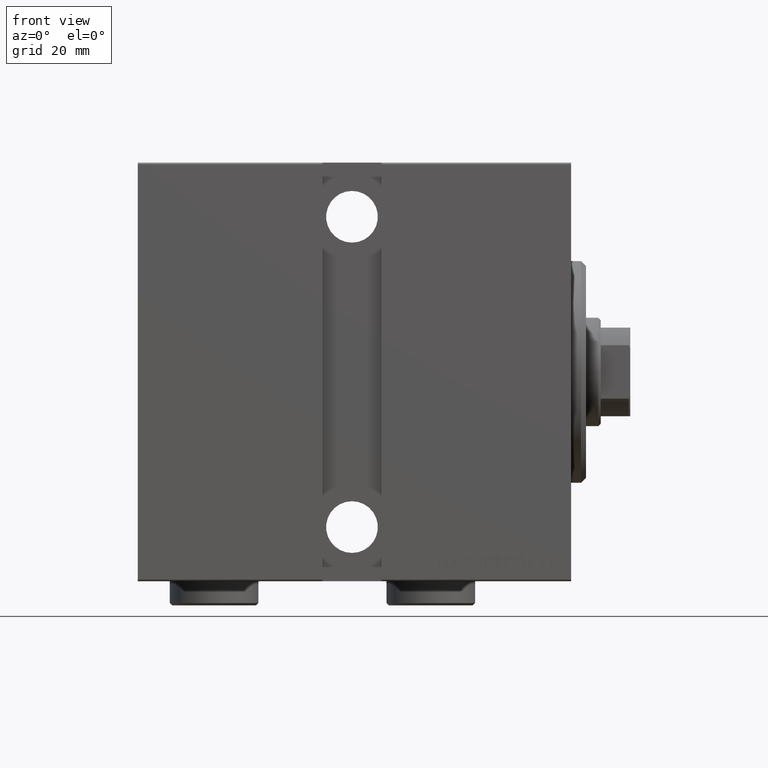
[diagram: clean part render]
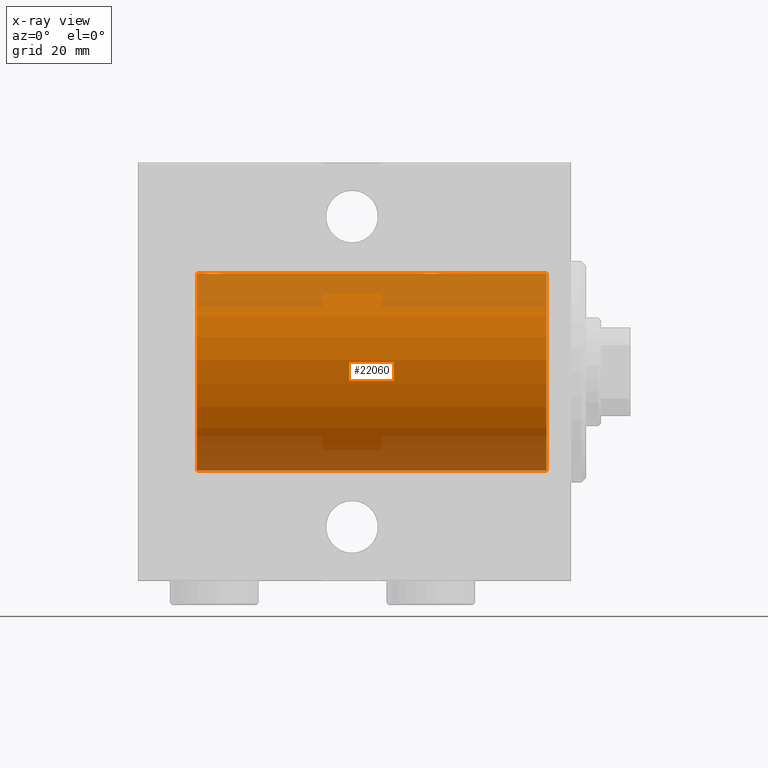
[diagram: x-ray — body ghosted, one internal face saturated and labeled with its STEP entity id]
A machine part, front view, then the same camera in x-ray: the body is ghosted and one INTERNAL B-rep face — a face not visible from any outside direction — is saturated and labeled: STEP entity #22060.
In plain terms, the highlighted cylindrical surface (partial cylindrical patch) has radius 20 mm, axis along (1, 0, -0).
Its self-contained STEP definition (entity closure, byte-faithful):
#1001 = CARTESIAN_POINT ( 'NONE',  ( 70.50000000000000000, -1.553188236289650144E-23, 20.00000000000000000 ) ) ;
#1042 = VERTEX_POINT ( 'NONE', #41483 ) ;
#1209 = DIRECTION ( 'NONE',  ( -1.000000000000000000, -0.000000000000000000, -0.000000000000000000 ) ) ;
#1746 = CARTESIAN_POINT ( 'NONE',  ( 30.23576365127895116, 1.002099838626316464, 19.97517568592526160 ) ) ;
#1774 = CARTESIAN_POINT ( 'NONE',  ( 5.000000000000004441, 0.000000000000000000, 20.00000000000000000 ) ) ;
#1960 = CARTESIAN_POINT ( 'NONE',  ( 27.85628869360148840, 1.898109641280496085, 19.90978941500366872 ) ) ;
#1985 = CARTESIAN_POINT ( 'NONE',  ( 5.000000000000004441, 2.449293598294706513E-15, -20.00000000000000000 ) ) ;
#2195 = CYLINDRICAL_SURFACE ( 'NONE', #21589, 20.00000000000000000 ) ;
#2627 = CARTESIAN_POINT ( 'NONE',  ( 30.09059733457551289, 1.219458756546269784, 19.96308513509966431 ) ) ;
#3158 = DIRECTION ( 'NONE',  ( -1.000000000000000000, -0.000000000000000000, -0.000000000000000000 ) ) ;
#3254 = CARTESIAN_POINT ( 'NONE',  ( 73.50645759073830732, 1.747830109444736602, 19.92373272380677207 ) ) ;
#3767 = DIRECTION ( 'NONE',  ( -1.000000000000000000, -0.000000000000000000, -0.000000000000000000 ) ) ;
#4977 = LINE ( 'NONE', #18538, #24408 ) ;
#5292 = CARTESIAN_POINT ( 'NONE',  ( 26.76510545398016205, 1.003547732426798955, 19.97510079925437054 ) ) ;
#5514 = CARTESIAN_POINT ( 'NONE',  ( 28.23758582179997845, 1.987020435121066742, 19.90106552791688799 ) ) ;
#5523 = DIRECTION ( 'NONE',  ( -1.000000000000000000, -0.000000000000000000, -0.000000000000000000 ) ) ;
#5713 = CARTESIAN_POINT ( 'NONE',  ( 72.23758582180001042, 1.987020435121064521, 19.90106552791689154 ) ) ;
#5736 = CARTESIAN_POINT ( 'NONE',  ( 27.49702773215046392, 1.735228749583825003, 19.92471474456648650 ) ) ;
#6154 = CARTESIAN_POINT ( 'NONE',  ( 74.29721343056698402, 0.8872481584516744846, 19.98067755938509649 ) ) ;
#6369 = CARTESIAN_POINT ( 'NONE',  ( 70.56426851132711420, 0.5196544277756652841, 19.99365919015135873 ) ) ;
#6585 = CARTESIAN_POINT ( 'NONE',  ( 74.39765113166075139, 0.6450624715427611955, 19.98996196681220638 ) ) ;
#6676 = LINE ( 'NONE', #6886, #25939 ) ;
#6875 = LINE ( 'NONE', #17094, #42427 ) ;
#6886 = CARTESIAN_POINT ( 'NONE',  ( 76.00000000000000000, 0.000000000000000000, 20.00000000000000000 ) ) ;
#7363 = CARTESIAN_POINT ( 'NONE',  ( 76.00000000000000000, 0.000000000000000000, 20.00000000000000000 ) ) ;
#8404 = CARTESIAN_POINT ( 'NONE',  ( 27.98100525813888595, 1.935912154109690198, 19.90610216711450775 ) ) ;
#8860 = CARTESIAN_POINT ( 'NONE',  ( 30.29721343056696270, 0.8872481584516771491, 19.98067755938510004 ) ) ;
#9053 = CARTESIAN_POINT ( 'NONE',  ( 71.61403810544166504, 1.797847595792759323, 19.91909332229798935 ) ) ;
#9075 = CARTESIAN_POINT ( 'NONE',  ( 30.50000000000000000, -3.987914257189907626E-15, 20.00000000000000000 ) ) ;
#9177 = DIRECTION ( 'NONE',  ( -1.000000000000000000, -0.000000000000000000, -0.000000000000000000 ) ) ;
#9442 = CARTESIAN_POINT ( 'NONE',  ( 26.50000000000000355, -1.552596590610734385E-23, 20.00000000000000000 ) ) ;
#9582 = EDGE_LOOP ( 'NONE', ( #37019, #33033, #12024, #36246, #31487, #35047, #38845, #42370 ) ) ;
#10870 = VERTEX_POINT ( 'NONE', #31969 ) ;
#12024 = ORIENTED_EDGE ( 'NONE', *, *, #22672, .T. ) ;
#13046 = CARTESIAN_POINT ( 'NONE',  ( 74.23576365127897247, 1.002099838626307138, 19.97517568592526516 ) ) ;
#14279 = DIRECTION ( 'NONE',  ( 0.000000000000000000, 0.000000000000000000, 1.000000000000000000 ) ) ;
#15280 = VERTEX_POINT ( 'NONE', #7363 ) ;
#15309 = CARTESIAN_POINT ( 'NONE',  ( 27.17939834916165509, 1.507796451871719734, 19.94330239452387588 ) ) ;
#15522 = CARTESIAN_POINT ( 'NONE',  ( 30.39765113166073363, 0.6450624715427637490, 19.98996196681219928 ) ) ;
#15971 = CARTESIAN_POINT ( 'NONE',  ( 29.72950112230633835, 1.598854313793181658, 19.93684595445884966 ) ) ;
#16165 = CARTESIAN_POINT ( 'NONE',  ( 70.70246098872841856, 0.8865903856744251632, 19.98070694681040038 ) ) ;
#16379 = CARTESIAN_POINT ( 'NONE',  ( 73.02513908455000546, 1.947330458682945187, 19.90522393307485061 ) ) ;
#16807 = CARTESIAN_POINT ( 'NONE',  ( 71.98100525813890727, 1.935912154109689531, 19.90610216711451130 ) ) ;
#17094 = CARTESIAN_POINT ( 'NONE',  ( 76.00000000000000000, 0.000000000000000000, 20.00000000000000000 ) ) ;
#17790 = B_SPLINE_CURVE_WITH_KNOTS ( 'NONE', 3,
 ( #26612, #33102, #30182, #43781, #6585, #6154, #13046, #26168, #30398, #33753, #3254, #16379, #23051, #29959, #5713, #16807, #43992, #9053, #22603, #36211, #19279, #22823, #36870, #43561, #16165, #19499, #6369, #40229, #39788, #36434 ),
 .UNSPECIFIED., .F., .F.,
 ( 4, 2, 2, 2, 2, 2, 2, 2, 2, 2, 2, 2, 2, 2, 4 ),
 ( 1.146295712831832348E-18, 0.0003910512220831368810, 0.0007821024441662726779, 0.001173153666249408420, 0.001564204888332544055, 0.002346307332498786917, 0.003128409776665029562, 0.003519460998748130502, 0.003910512220831229707, 0.004301563442914330647, 0.004692614664997430719, 0.005083665887080530792, 0.005474717109163631731, 0.005865768331246731804, 0.006256819553329832743 ),
 .UNSPECIFIED. ) ;
#18350 = CARTESIAN_POINT ( 'NONE',  ( 76.00000000000000000, 0.000000000000000000, 0.000000000000000000 ) ) ;
#18538 = CARTESIAN_POINT ( 'NONE',  ( 76.00000000000000000, 0.000000000000000000, 20.00000000000000000 ) ) ;
#18641 = CARTESIAN_POINT ( 'NONE',  ( 30.49999999999997868, 0.1322335637814716913, 19.99999999999999645 ) ) ;
#19072 = CARTESIAN_POINT ( 'NONE',  ( 26.99261358456011095, 1.321069663197662836, 19.95654117037011588 ) ) ;
#19279 = CARTESIAN_POINT ( 'NONE',  ( 71.17939834916164443, 1.507796451871717736, 19.94330239452387943 ) ) ;
#19499 = CARTESIAN_POINT ( 'NONE',  ( 70.60210312641140717, 0.6443418861413057197, 19.98998539619404369 ) ) ;
#19520 = CARTESIAN_POINT ( 'NONE',  ( 27.28039724650255948, 1.590453176650909350, 19.93679350243183634 ) ) ;
#19784 = VECTOR ( 'NONE', #3158, 1000.000000000000000 ) ;
#20689 = CARTESIAN_POINT ( 'NONE',  ( 76.00000000000000000, 2.449293598294706513E-15, -20.00000000000000000 ) ) ;
#21316 = EDGE_CURVE ( 'NONE', #10870, #38956, #24061, .T. ) ;
#21589 = AXIS2_PLACEMENT_3D ( 'NONE', #32690, #5523, #22424 ) ;
#22060 = ADVANCED_FACE ( 'NONE', ( #25982 ), #2195, .F. ) ;
#22308 = VERTEX_POINT ( 'NONE', #26140 ) ;
#22414 = CARTESIAN_POINT ( 'NONE',  ( 30.48701494615325203, 0.2622407139811169796, 19.99868965376115071 ) ) ;
#22424 = DIRECTION ( 'NONE',  ( 0.000000000000000000, 0.000000000000000000, 1.000000000000000000 ) ) ;
#22603 = CARTESIAN_POINT ( 'NONE',  ( 71.49702773215048524, 1.735228749583821672, 19.92471474456648650 ) ) ;
#22672 = EDGE_CURVE ( 'NONE', #15280, #1042, #4977, .T. ) ;
#22823 = CARTESIAN_POINT ( 'NONE',  ( 70.99261358456014648, 1.321069663197660837, 19.95654117037011943 ) ) ;
#22844 = CARTESIAN_POINT ( 'NONE',  ( 27.61403810544162951, 1.797847595792755770, 19.91909332229799290 ) ) ;
#23051 = CARTESIAN_POINT ( 'NONE',  ( 72.76180153897439595, 1.999905101582713396, 19.89975827978156531 ) ) ;
#23472 = EDGE_CURVE ( 'NONE', #39986, #31307, #31577, .T. ) ;
#24061 = B_SPLINE_CURVE_WITH_KNOTS ( 'NONE', 3,
 ( #9075, #18641, #22414, #36455, #15522, #8860, #1746, #2627, #43151, #15971, #32904, #25314, #25533, #42478, #5514, #8404, #1960, #22844, #5736, #19520, #15309, #19072, #32681, #5292, #29553, #39152, #29107, #28881, #33123, #38929 ),
 .UNSPECIFIED., .F., .F.,
 ( 4, 2, 2, 2, 2, 2, 2, 2, 2, 2, 2, 2, 2, 2, 4 ),
 ( 6.737296076284884849E-18, 0.0003910512220831210517, 0.0007821024441662353813, 0.001173153666249349657, 0.001564204888332464041, 0.002346307332498693676, 0.003128409776664922877, 0.003519460998748032490, 0.003910512220831142104, 0.004301563442914251717, 0.004692614664997360463, 0.005083665887080470944, 0.005474717109163579690, 0.005865768331246689303, 0.006256819553329798916 ),
 .UNSPECIFIED. ) ;
#24408 = VECTOR ( 'NONE', #1209, 1000.000000000000000 ) ;
#24509 = DIRECTION ( 'NONE',  ( -1.000000000000000000, 0.000000000000000000, 0.000000000000000000 ) ) ;
#24915 = AXIS2_PLACEMENT_3D ( 'NONE', #18350, #35949, #29265 ) ;
#25314 = CARTESIAN_POINT ( 'NONE',  ( 29.02513908454998059, 1.947330458682949850, 19.90522393307484705 ) ) ;
#25533 = CARTESIAN_POINT ( 'NONE',  ( 28.76180153897437819, 1.999905101582717171, 19.89975827978156531 ) ) ;
#25939 = VECTOR ( 'NONE', #3767, 1000.000000000000000 ) ;
#25982 = FACE_OUTER_BOUND ( 'NONE', #9582, .T. ) ;
#26140 = CARTESIAN_POINT ( 'NONE',  ( 76.00000000000000000, 2.449293598294706513E-15, -20.00000000000000000 ) ) ;
#26168 = CARTESIAN_POINT ( 'NONE',  ( 74.09059733457554842, 1.219458756546261791, 19.96308513509966787 ) ) ;
#26262 = EDGE_CURVE ( 'NONE', #38956, #39986, #6676, .T. ) ;
#26612 = CARTESIAN_POINT ( 'NONE',  ( 74.50000000000001421, 1.179655747245154047E-15, 20.00000000000000000 ) ) ;
#27856 = CARTESIAN_POINT ( 'NONE',  ( 5.000000000000004441, 0.000000000000000000, 0.000000000000000000 ) ) ;
#28813 = LINE ( 'NONE', #20689, #19784 ) ;
#28881 = CARTESIAN_POINT ( 'NONE',  ( 26.51308707988552626, 0.2631998640366420283, 19.99867931558985390 ) ) ;
#29107 = CARTESIAN_POINT ( 'NONE',  ( 26.56426851132707867, 0.5196544277756658392, 19.99365919015135873 ) ) ;
#29265 = DIRECTION ( 'NONE',  ( 0.000000000000000000, 0.000000000000000000, 1.000000000000000000 ) ) ;
#29553 = CARTESIAN_POINT ( 'NONE',  ( 26.70246098872837237, 0.8865903856744267175, 19.98070694681038972 ) ) ;
#29711 = EDGE_CURVE ( 'NONE', #36915, #10870, #6875, .T. ) ;
#29959 = CARTESIAN_POINT ( 'NONE',  ( 72.37018818709296397, 2.000047251570878259, 19.89974399317116038 ) ) ;
#30182 = CARTESIAN_POINT ( 'NONE',  ( 74.48701494615326624, 0.2622407139811093191, 19.99868965376115426 ) ) ;
#30398 = CARTESIAN_POINT ( 'NONE',  ( 74.00615770380713343, 1.322305185229304181, 19.95645382900617193 ) ) ;
#30613 = CIRCLE ( 'NONE', #24915, 20.00000000000000000 ) ;
#31307 = VERTEX_POINT ( 'NONE', #1985 ) ;
#31487 = ORIENTED_EDGE ( 'NONE', *, *, #29711, .T. ) ;
#31577 = CIRCLE ( 'NONE', #38010, 20.00000000000000000 ) ;
#31969 = CARTESIAN_POINT ( 'NONE',  ( 30.50000000000000000, -3.987914257189907626E-15, 20.00000000000000000 ) ) ;
#32681 = CARTESIAN_POINT ( 'NONE',  ( 26.90992932310325969, 1.220099331833889966, 19.96304379627741099 ) ) ;
#32690 = CARTESIAN_POINT ( 'NONE',  ( 76.00000000000000000, 0.000000000000000000, 0.000000000000000000 ) ) ;
#32753 = EDGE_CURVE ( 'NONE', #22308, #31307, #28813, .T. ) ;
#32904 = CARTESIAN_POINT ( 'NONE',  ( 29.50645759073829311, 1.747830109444741042, 19.92373272380676852 ) ) ;
#33033 = ORIENTED_EDGE ( 'NONE', *, *, #41458, .F. ) ;
#33102 = CARTESIAN_POINT ( 'NONE',  ( 74.50000000000001421, 0.1322335637814731901, 20.00000000000000000 ) ) ;
#33123 = CARTESIAN_POINT ( 'NONE',  ( 26.50000000000000000, 0.1305706983324424475, 20.00000000000000355 ) ) ;
#33753 = CARTESIAN_POINT ( 'NONE',  ( 73.72950112230634545, 1.598854313793176773, 19.93684595445884256 ) ) ;
#35047 = ORIENTED_EDGE ( 'NONE', *, *, #21316, .T. ) ;
#35949 = DIRECTION ( 'NONE',  ( -1.000000000000000000, 0.000000000000000000, 0.000000000000000000 ) ) ;
#36211 = CARTESIAN_POINT ( 'NONE',  ( 71.28039724650254527, 1.590453176650904910, 19.93679350243183990 ) ) ;
#36246 = ORIENTED_EDGE ( 'NONE', *, *, #38745, .T. ) ;
#36434 = CARTESIAN_POINT ( 'NONE',  ( 70.50000000000000000, -1.553188236289650144E-23, 20.00000000000000000 ) ) ;
#36455 = CARTESIAN_POINT ( 'NONE',  ( 30.43615228383327320, 0.5179893069484664547, 19.99370013622814568 ) ) ;
#36870 = CARTESIAN_POINT ( 'NONE',  ( 70.90992932310328456, 1.220099331833891743, 19.96304379627741454 ) ) ;
#36915 = VERTEX_POINT ( 'NONE', #1001 ) ;
#37019 = ORIENTED_EDGE ( 'NONE', *, *, #32753, .F. ) ;
#38010 = AXIS2_PLACEMENT_3D ( 'NONE', #27856, #24509, #14279 ) ;
#38745 = EDGE_CURVE ( 'NONE', #1042, #36915, #17790, .T. ) ;
#38845 = ORIENTED_EDGE ( 'NONE', *, *, #26262, .T. ) ;
#38929 = CARTESIAN_POINT ( 'NONE',  ( 26.50000000000000355, -1.552596590610734385E-23, 20.00000000000000000 ) ) ;
#38956 = VERTEX_POINT ( 'NONE', #9442 ) ;
#39152 = CARTESIAN_POINT ( 'NONE',  ( 26.60210312641135033, 0.6443418861413082732, 19.98998539619404013 ) ) ;
#39788 = CARTESIAN_POINT ( 'NONE',  ( 70.50000000000004263, 0.1305706983324428083, 20.00000000000000355 ) ) ;
#39986 = VERTEX_POINT ( 'NONE', #1774 ) ;
#40229 = CARTESIAN_POINT ( 'NONE',  ( 70.51308707988555113, 0.2631998640366408626, 19.99867931558986456 ) ) ;
#41458 = EDGE_CURVE ( 'NONE', #15280, #22308, #30613, .T. ) ;
#41483 = CARTESIAN_POINT ( 'NONE',  ( 74.50000000000001421, 1.179655747245154047E-15, 20.00000000000000000 ) ) ;
#42370 = ORIENTED_EDGE ( 'NONE', *, *, #23472, .T. ) ;
#42427 = VECTOR ( 'NONE', #9177, 1000.000000000000000 ) ;
#42478 = CARTESIAN_POINT ( 'NONE',  ( 28.37018818709292844, 2.000047251570879148, 19.89974399317114617 ) ) ;
#43151 = CARTESIAN_POINT ( 'NONE',  ( 30.00615770380712632, 1.322305185229308844, 19.95645382900617193 ) ) ;
#43561 = CARTESIAN_POINT ( 'NONE',  ( 70.76510545398019758, 1.003547732426800065, 19.97510079925437765 ) ) ;
#43781 = CARTESIAN_POINT ( 'NONE',  ( 74.43615228383329452, 0.5179893069484606816, 19.99370013622814568 ) ) ;
#43992 = CARTESIAN_POINT ( 'NONE',  ( 71.85628869360149906, 1.898109641280497639, 19.90978941500366872 ) ) ;